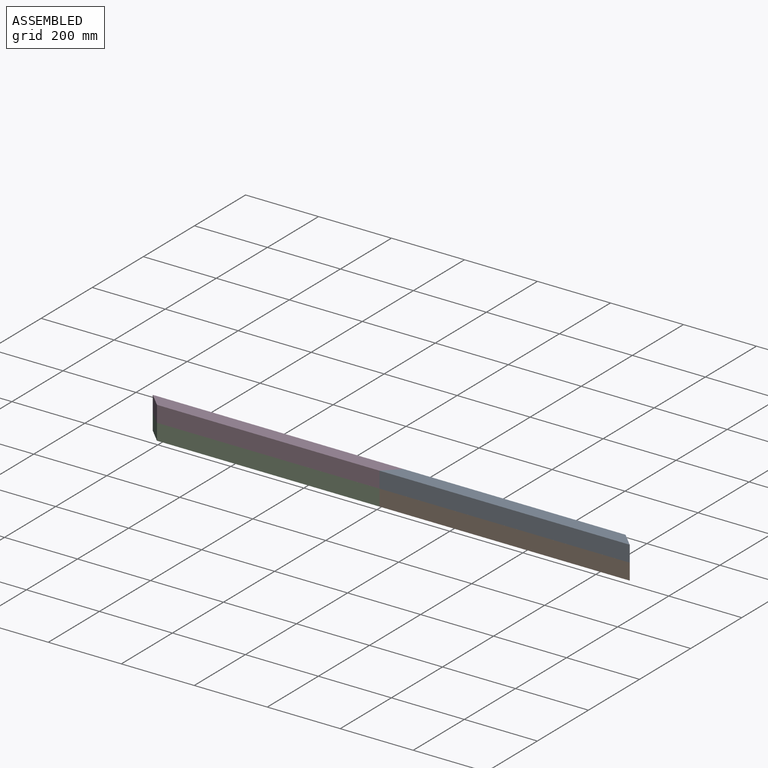
[diagram: assembled view]
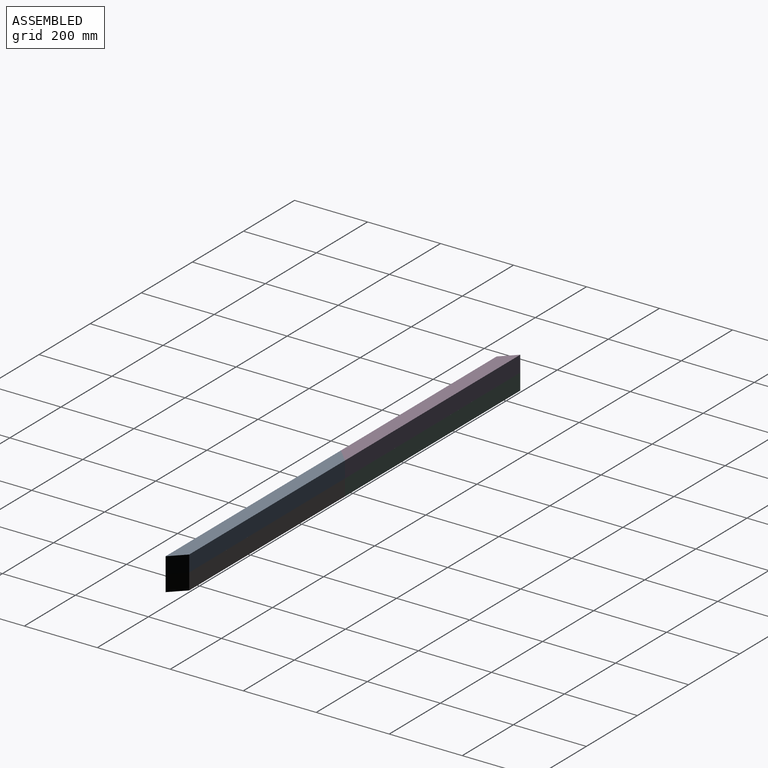
[diagram: assembled view, second angle]
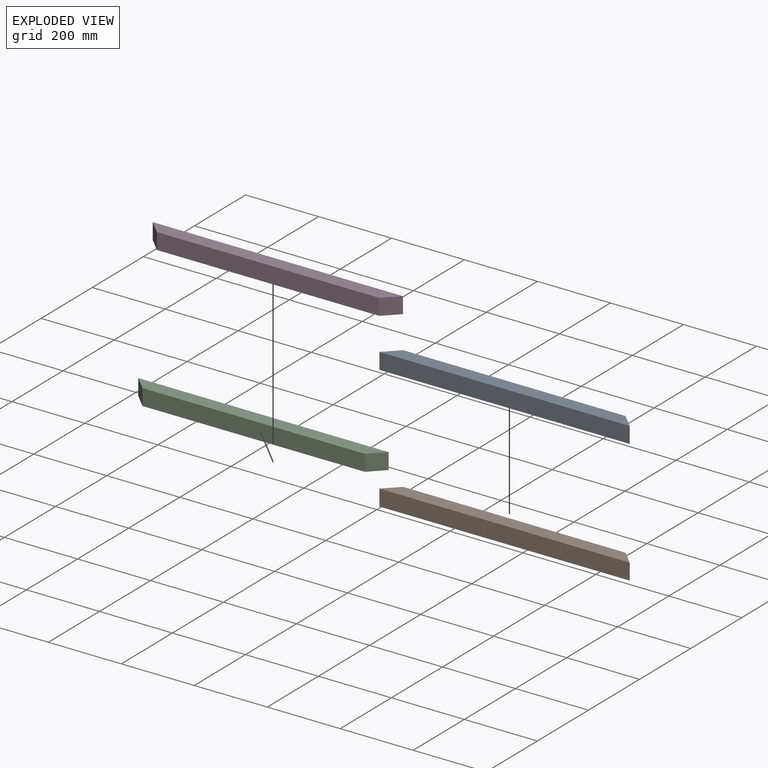
[diagram: exploded view]
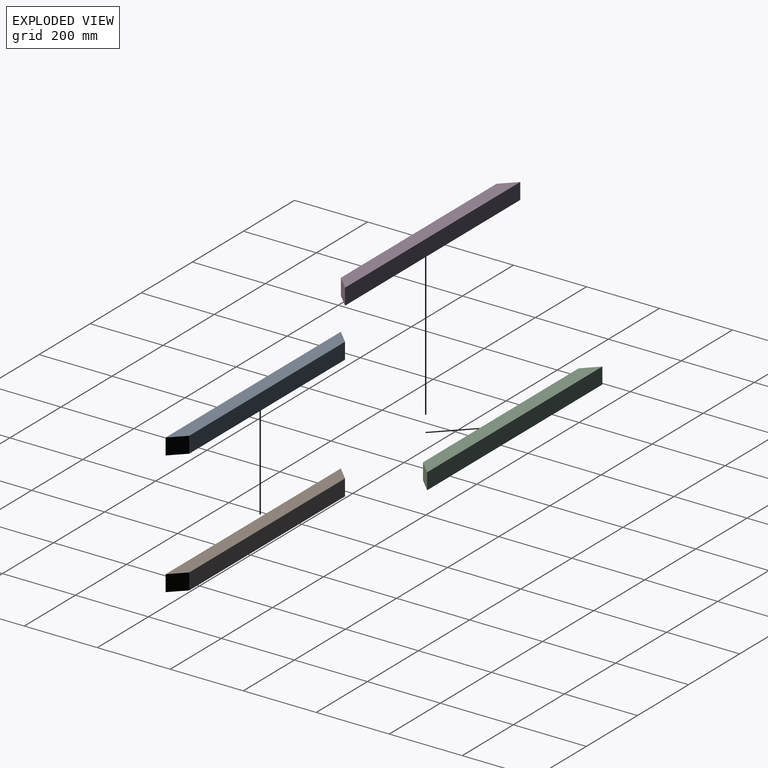
[diagram: exploded view, second angle]
ASSEMBLY  parts=4 mates=3
PART A: 6 faces, bbox 484.9x484.9x44.5 mm
  f0: plane 431.05x431.05mm, normal (-0.71,0.71,0), area 27096.7mm2, adj f1,f3,f4,f5
  f1: plane 53.88x44.45mm, normal (-1,0,0), area 2395mm2, adj f0,f2,f4,f5
  f2: plane 484.93x484.93mm, normal (0.71,-0.71,0), area 30483.8mm2, adj f1,f3,f4,f5
  f3: plane 53.88x44.45mm, normal (0,1,0), area 2395mm2, adj f0,f2,f4,f5
  f4: plane 484.93x484.93mm, normal (0,0,1), area 24677.4mm2, adj f0,f1,f2,f3
  f5: plane 484.93x484.93mm, normal (0,0,-1), area 24677.4mm2, adj f0,f1,f2,f3
PART B: same geometry as A
PART C: same geometry as A
PART D: same geometry as A
PLACE A rot(axis=(0,0,-1),45deg) t=(-576.22,-969.58,705.9)mm
PLACE B rot(axis=(0,0,-1),45deg) t=(-576.22,-969.58,661.45)mm
PLACE C rot(axis=(0,0,1),135deg) t=(-1745.27,570.47,661.45)mm
PLACE D rot(axis=(0,0,1),135deg) t=(-1745.27,570.47,705.9)mm
MATE fastened A.f5 <-> B.f4  axis (0,0,-1) through (-836.89,-199.93,705.9)mm
MATE fastened C.f4 <-> D.f5  axis (0,0,1) through (-1484.59,-199.18,705.9)mm
MATE fastened C.f1 <-> B.f1  axis (0.71,-0.71,0) through (-1160.74,-199.56,683.67)mm
